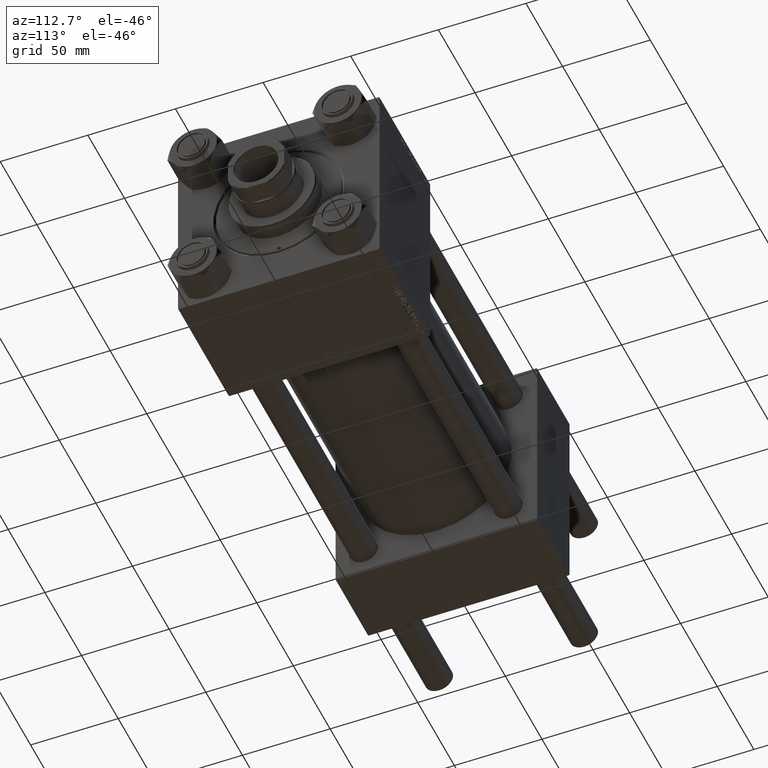
[diagram: clean part render]
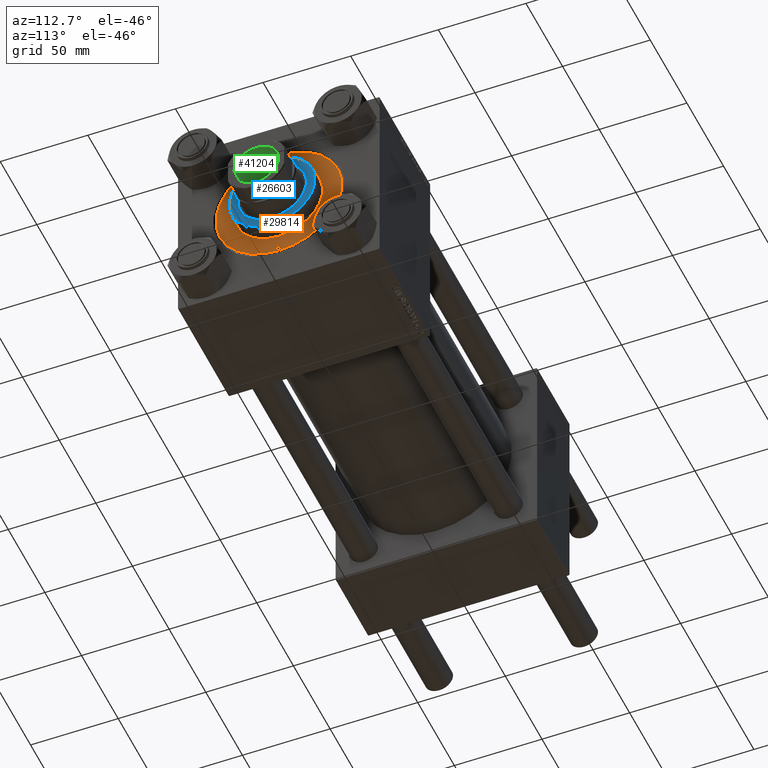
[diagram: same view with three faces highlighted in distinct colors, each labeled with its STEP entity id]
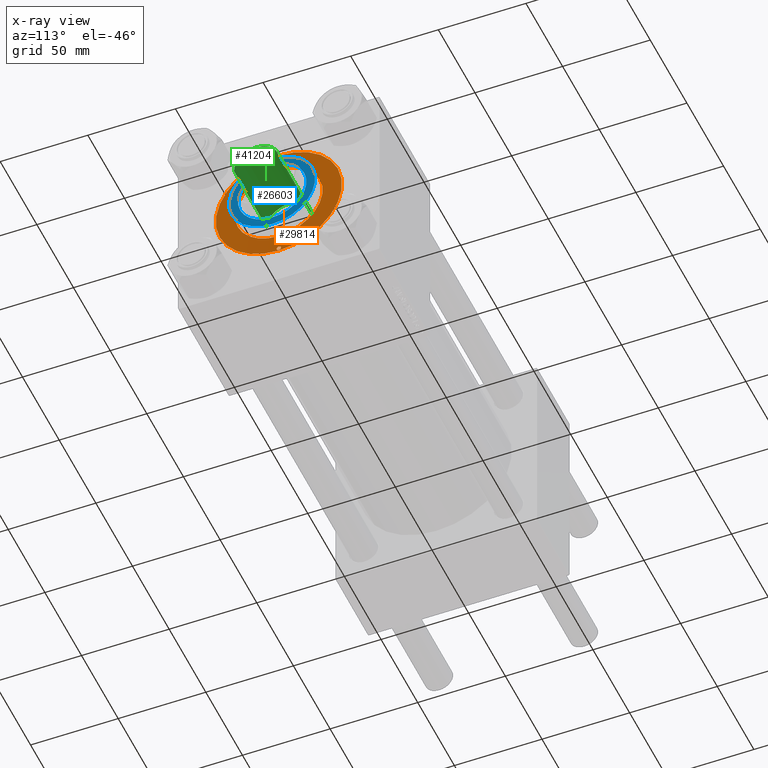
[diagram: x-ray of the same camera — body ghosted, the three highlighted faces saturated]
A machine part, auxiliary view with three faces highlighted in distinct colors.
The next image is the same camera in x-ray (body ghosted, the three faces saturated) — at least one of them is partly hidden behind the body in this view.
Their STEP definitions:

[orange] entity #29814 — the highlighted planar face has unit normal (1, 0, -0).
#382 = CIRCLE ( 'NONE', #17466, 1.250000000000001110 ) ;
#981 = AXIS2_PLACEMENT_3D ( 'NONE', #20736, #44654, #29391 ) ;
#1935 = ORIENTED_EDGE ( 'NONE', *, *, #22366, .T. ) ;
#2160 = DIRECTION ( 'NONE',  ( 0.000000000000000000, 0.000000000000000000, 1.000000000000000000 ) ) ;
#2227 = CIRCLE ( 'NONE', #42900, 25.00000000000000000 ) ;
#2228 = DIRECTION ( 'NONE',  ( 1.000000000000000000, 0.000000000000000000, 0.000000000000000000 ) ) ;
#2986 = EDGE_CURVE ( 'NONE', #9728, #20578, #2227, .T. ) ;
#4103 = EDGE_LOOP ( 'NONE', ( #32175, #26709 ) ) ;
#4294 = CARTESIAN_POINT ( 'NONE',  ( -25.00000000000000000, 0.000000000000000000, 28.69999999999999929 ) ) ;
#6079 = EDGE_CURVE ( 'NONE', #9065, #14049, #23490, .T. ) ;
#7168 = ORIENTED_EDGE ( 'NONE', *, *, #14631, .F. ) ;
#7275 = ORIENTED_EDGE ( 'NONE', *, *, #46369, .T. ) ;
#8010 = AXIS2_PLACEMENT_3D ( 'NONE', #28464, #39685, #20329 ) ;
#9046 = DIRECTION ( 'NONE',  ( 1.000000000000000000, 0.000000000000000000, 0.000000000000000000 ) ) ;
#9065 = VERTEX_POINT ( 'NONE', #14361 ) ;
#9728 = VERTEX_POINT ( 'NONE', #4294 ) ;
#10563 = DIRECTION ( 'NONE',  ( 1.000000000000000000, 0.000000000000000000, -0.000000000000000000 ) ) ;
#14049 = VERTEX_POINT ( 'NONE', #44635 ) ;
#14361 = CARTESIAN_POINT ( 'NONE',  ( -35.50000000000000711, 1.530808498934184175E-16, 28.69999999999999929 ) ) ;
#14631 = EDGE_CURVE ( 'NONE', #20578, #9728, #16286, .T. ) ;
#14644 = FACE_OUTER_BOUND ( 'NONE', #19462, .T. ) ;
#14736 = DIRECTION ( 'NONE',  ( 1.000000000000000000, 0.000000000000000000, 0.000000000000000000 ) ) ;
#15140 = FACE_BOUND ( 'NONE', #4103, .T. ) ;
#15212 = CIRCLE ( 'NONE', #42038, 1.250000000000001110 ) ;
#16286 = CIRCLE ( 'NONE', #24417, 25.00000000000000000 ) ;
#17224 = AXIS2_PLACEMENT_3D ( 'NONE', #22950, #19867, #46850 ) ;
#17466 = AXIS2_PLACEMENT_3D ( 'NONE', #50392, #25147, #2228 ) ;
#18489 = CARTESIAN_POINT ( 'NONE',  ( 36.00000000000000000, 4.408728476930470856E-15, 28.69999999999999929 ) ) ;
#19462 = EDGE_LOOP ( 'NONE', ( #1935, #7275 ) ) ;
#19867 = DIRECTION ( 'NONE',  ( 0.000000000000000000, 0.000000000000000000, 1.000000000000000000 ) ) ;
#19892 = CARTESIAN_POINT ( 'NONE',  ( 33.00000000000000000, 1.530808498934184175E-16, 28.69999999999999929 ) ) ;
#20299 = DIRECTION ( 'NONE',  ( 1.000000000000000000, 0.000000000000000000, 0.000000000000000000 ) ) ;
#20329 = DIRECTION ( 'NONE',  ( 1.000000000000000000, 0.000000000000000000, 0.000000000000000000 ) ) ;
#20578 = VERTEX_POINT ( 'NONE', #41644 ) ;
#20736 = CARTESIAN_POINT ( 'NONE',  ( 34.25000000000000000, 0.000000000000000000, 28.69999999999999929 ) ) ;
#20761 = CARTESIAN_POINT ( 'NONE',  ( -34.25000000000000000, 0.000000000000000000, 28.69999999999999929 ) ) ;
#21791 = EDGE_CURVE ( 'NONE', #42859, #47492, #26167, .T. ) ;
#22116 = CARTESIAN_POINT ( 'NONE',  ( 0.000000000000000000, 0.000000000000000000, 28.69999999999999929 ) ) ;
#22366 = EDGE_CURVE ( 'NONE', #46228, #49810, #41643, .T. ) ;
#22950 = CARTESIAN_POINT ( 'NONE',  ( 0.000000000000000000, 0.000000000000000000, 28.69999999999999929 ) ) ;
#23490 = CIRCLE ( 'NONE', #49509, 1.250000000000001110 ) ;
#24417 = AXIS2_PLACEMENT_3D ( 'NONE', #43212, #35847, #20299 ) ;
#25147 = DIRECTION ( 'NONE',  ( 0.000000000000000000, 0.000000000000000000, 1.000000000000000000 ) ) ;
#26167 = CIRCLE ( 'NONE', #981, 1.250000000000001110 ) ;
#26709 = ORIENTED_EDGE ( 'NONE', *, *, #28612, .F. ) ;
#27713 = DIRECTION ( 'NONE',  ( 0.000000000000000000, 0.000000000000000000, 1.000000000000000000 ) ) ;
#28464 = CARTESIAN_POINT ( 'NONE',  ( 0.000000000000000000, 0.000000000000000000, 28.69999999999999929 ) ) ;
#28612 = EDGE_CURVE ( 'NONE', #47492, #42859, #382, .T. ) ;
#29391 = DIRECTION ( 'NONE',  ( 1.000000000000000000, 0.000000000000000000, 0.000000000000000000 ) ) ;
#29814 = ADVANCED_FACE ( 'NONE', ( #34517, #15140, #49516, #14644 ), #30690, .T. ) ;
#30690 = PLANE ( 'NONE',  #47559 ) ;
#32175 = ORIENTED_EDGE ( 'NONE', *, *, #21791, .F. ) ;
#33508 = DIRECTION ( 'NONE',  ( 0.000000000000000000, 0.000000000000000000, 1.000000000000000000 ) ) ;
#34517 = FACE_BOUND ( 'NONE', #41798, .T. ) ;
#34629 = CARTESIAN_POINT ( 'NONE',  ( -36.00000000000000000, 0.000000000000000000, 28.69999999999999929 ) ) ;
#34745 = ORIENTED_EDGE ( 'NONE', *, *, #6079, .F. ) ;
#35129 = CARTESIAN_POINT ( 'NONE',  ( -34.25000000000000000, 0.000000000000000000, 28.69999999999999929 ) ) ;
#35847 = DIRECTION ( 'NONE',  ( 0.000000000000000000, 0.000000000000000000, 1.000000000000000000 ) ) ;
#38784 = CARTESIAN_POINT ( 'NONE',  ( 35.50000000000000711, 0.000000000000000000, 28.69999999999999929 ) ) ;
#39685 = DIRECTION ( 'NONE',  ( 0.000000000000000000, 0.000000000000000000, 1.000000000000000000 ) ) ;
#40721 = DIRECTION ( 'NONE',  ( 0.000000000000000000, 0.000000000000000000, 1.000000000000000000 ) ) ;
#41376 = CIRCLE ( 'NONE', #8010, 36.00000000000000000 ) ;
#41626 = EDGE_CURVE ( 'NONE', #14049, #9065, #15212, .T. ) ;
#41643 = CIRCLE ( 'NONE', #17224, 36.00000000000000000 ) ;
#41644 = CARTESIAN_POINT ( 'NONE',  ( 25.00000000000000000, 3.061616997868383043E-15, 28.69999999999999929 ) ) ;
#41717 = ORIENTED_EDGE ( 'NONE', *, *, #2986, .F. ) ;
#41798 = EDGE_LOOP ( 'NONE', ( #48480, #34745 ) ) ;
#42038 = AXIS2_PLACEMENT_3D ( 'NONE', #35129, #27713, #47305 ) ;
#42859 = VERTEX_POINT ( 'NONE', #38784 ) ;
#42900 = AXIS2_PLACEMENT_3D ( 'NONE', #22116, #40721, #14736 ) ;
#43212 = CARTESIAN_POINT ( 'NONE',  ( 0.000000000000000000, 0.000000000000000000, 28.69999999999999929 ) ) ;
#44635 = CARTESIAN_POINT ( 'NONE',  ( -33.00000000000000000, 0.000000000000000000, 28.69999999999999929 ) ) ;
#44654 = DIRECTION ( 'NONE',  ( 0.000000000000000000, 0.000000000000000000, 1.000000000000000000 ) ) ;
#46197 = CARTESIAN_POINT ( 'NONE',  ( 0.000000000000000000, 0.000000000000000000, 28.69999999999999929 ) ) ;
#46228 = VERTEX_POINT ( 'NONE', #34629 ) ;
#46369 = EDGE_CURVE ( 'NONE', #49810, #46228, #41376, .T. ) ;
#46850 = DIRECTION ( 'NONE',  ( 1.000000000000000000, 0.000000000000000000, 0.000000000000000000 ) ) ;
#47305 = DIRECTION ( 'NONE',  ( 1.000000000000000000, 0.000000000000000000, 0.000000000000000000 ) ) ;
#47492 = VERTEX_POINT ( 'NONE', #19892 ) ;
#47559 = AXIS2_PLACEMENT_3D ( 'NONE', #46197, #33508, #10563 ) ;
#48480 = ORIENTED_EDGE ( 'NONE', *, *, #41626, .F. ) ;
#49509 = AXIS2_PLACEMENT_3D ( 'NONE', #20761, #2160, #9046 ) ;
#49516 = FACE_BOUND ( 'NONE', #49938, .T. ) ;
#49810 = VERTEX_POINT ( 'NONE', #18489 ) ;
#49938 = EDGE_LOOP ( 'NONE', ( #41717, #7168 ) ) ;
#50392 = CARTESIAN_POINT ( 'NONE',  ( 34.25000000000000000, 0.000000000000000000, 28.69999999999999929 ) ) ;

[blue] entity #26603 — the highlighted planar face has unit normal (1, 0, -0).
#1868 = DIRECTION ( 'NONE',  ( 0.000000000000000000, 0.000000000000000000, 1.000000000000000000 ) ) ;
#2363 = CARTESIAN_POINT ( 'NONE',  ( -24.49999999999999645, 0.000000000000000000, 37.69999999999999574 ) ) ;
#2571 = AXIS2_PLACEMENT_3D ( 'NONE', #33700, #1868, #37008 ) ;
#4141 = CARTESIAN_POINT ( 'NONE',  ( 0.000000000000000000, 0.000000000000000000, 37.69999999999999574 ) ) ;
#4325 = ORIENTED_EDGE ( 'NONE', *, *, #42934, .F. ) ;
#4666 = FACE_BOUND ( 'NONE', #20717, .T. ) ;
#9600 = ORIENTED_EDGE ( 'NONE', *, *, #21555, .T. ) ;
#9878 = CIRCLE ( 'NONE', #2571, 19.50000000000000000 ) ;
#11335 = AXIS2_PLACEMENT_3D ( 'NONE', #30644, #46154, #33964 ) ;
#11494 = EDGE_CURVE ( 'NONE', #29146, #16881, #21915, .T. ) ;
#12054 = FACE_OUTER_BOUND ( 'NONE', #45596, .T. ) ;
#12812 = AXIS2_PLACEMENT_3D ( 'NONE', #4141, #46897, #15606 ) ;
#15606 = DIRECTION ( 'NONE',  ( 1.000000000000000000, 0.000000000000000000, 0.000000000000000000 ) ) ;
#15635 = CIRCLE ( 'NONE', #22939, 24.49999999999999645 ) ;
#16881 = VERTEX_POINT ( 'NONE', #2363 ) ;
#16951 = EDGE_CURVE ( 'NONE', #33333, #42990, #9878, .T. ) ;
#18193 = AXIS2_PLACEMENT_3D ( 'NONE', #35749, #27334, #43123 ) ;
#20717 = EDGE_LOOP ( 'NONE', ( #28014, #4325 ) ) ;
#20965 = CARTESIAN_POINT ( 'NONE',  ( 24.49999999999999645, 3.031000827889698861E-15, 37.69999999999999574 ) ) ;
#21555 = EDGE_CURVE ( 'NONE', #16881, #29146, #15635, .T. ) ;
#21915 = CIRCLE ( 'NONE', #11335, 24.49999999999999645 ) ;
#22939 = AXIS2_PLACEMENT_3D ( 'NONE', #26122, #30208, #26888 ) ;
#26122 = CARTESIAN_POINT ( 'NONE',  ( 0.000000000000000000, 0.000000000000000000, 37.69999999999999574 ) ) ;
#26603 = ADVANCED_FACE ( 'NONE', ( #4666, #12054 ), #40059, .T. ) ;
#26888 = DIRECTION ( 'NONE',  ( 1.000000000000000000, 0.000000000000000000, 0.000000000000000000 ) ) ;
#27334 = DIRECTION ( 'NONE',  ( 0.000000000000000000, 0.000000000000000000, 1.000000000000000000 ) ) ;
#28014 = ORIENTED_EDGE ( 'NONE', *, *, #16951, .F. ) ;
#29146 = VERTEX_POINT ( 'NONE', #20965 ) ;
#30208 = DIRECTION ( 'NONE',  ( 0.000000000000000000, 0.000000000000000000, 1.000000000000000000 ) ) ;
#30644 = CARTESIAN_POINT ( 'NONE',  ( 0.000000000000000000, 0.000000000000000000, 37.69999999999999574 ) ) ;
#33333 = VERTEX_POINT ( 'NONE', #33734 ) ;
#33700 = CARTESIAN_POINT ( 'NONE',  ( 0.000000000000000000, 0.000000000000000000, 37.69999999999999574 ) ) ;
#33734 = CARTESIAN_POINT ( 'NONE',  ( 19.50000000000000000, 0.000000000000000000, 37.69999999999999574 ) ) ;
#33964 = DIRECTION ( 'NONE',  ( 1.000000000000000000, 0.000000000000000000, 0.000000000000000000 ) ) ;
#35749 = CARTESIAN_POINT ( 'NONE',  ( 0.000000000000000000, 0.000000000000000000, 37.69999999999999574 ) ) ;
#37008 = DIRECTION ( 'NONE',  ( 1.000000000000000000, 0.000000000000000000, 0.000000000000000000 ) ) ;
#40059 = PLANE ( 'NONE',  #18193 ) ;
#40800 = ORIENTED_EDGE ( 'NONE', *, *, #11494, .T. ) ;
#41240 = CIRCLE ( 'NONE', #12812, 19.50000000000000000 ) ;
#42934 = EDGE_CURVE ( 'NONE', #42990, #33333, #41240, .T. ) ;
#42990 = VERTEX_POINT ( 'NONE', #48396 ) ;
#43123 = DIRECTION ( 'NONE',  ( 1.000000000000000000, 0.000000000000000000, -0.000000000000000000 ) ) ;
#45596 = EDGE_LOOP ( 'NONE', ( #9600, #40800 ) ) ;
#46154 = DIRECTION ( 'NONE',  ( 0.000000000000000000, 0.000000000000000000, 1.000000000000000000 ) ) ;
#46897 = DIRECTION ( 'NONE',  ( 0.000000000000000000, 0.000000000000000000, 1.000000000000000000 ) ) ;
#48396 = CARTESIAN_POINT ( 'NONE',  ( -19.50000000000000000, 2.388061258337338939E-15, 37.69999999999999574 ) ) ;

[green] entity #41204 — the highlighted cylindrical surface (edge-blend (fillet) strip) has radius 12.75 mm, axis along (1, 0, -0).
#1747 = AXIS2_PLACEMENT_3D ( 'NONE', #8269, #23811, #19223 ) ;
#4196 = EDGE_CURVE ( 'NONE', #6971, #44703, #31229, .T. ) ;
#5549 = DIRECTION ( 'NONE',  ( -0.000000000000000000, -0.000000000000000000, 1.000000000000000000 ) ) ;
#6683 = CARTESIAN_POINT ( 'NONE',  ( 0.000000000000000000, 0.000000000000000000, 246.0000000000000000 ) ) ;
#6971 = VERTEX_POINT ( 'NONE', #10310 ) ;
#8269 = CARTESIAN_POINT ( 'NONE',  ( 0.000000000000000000, 0.000000000000000000, 245.6999999999999886 ) ) ;
#10310 = CARTESIAN_POINT ( 'NONE',  ( -12.74999999999998934, 1.561424668912873928E-15, 201.0000000000000000 ) ) ;
#11513 = CIRCLE ( 'NONE', #1747, 12.74999999999999112 ) ;
#13704 = VECTOR ( 'NONE', #46233, 1000.000000000000000 ) ;
#15309 = EDGE_LOOP ( 'NONE', ( #37951, #37571, #44217, #28233 ) ) ;
#19223 = DIRECTION ( 'NONE',  ( 1.000000000000000000, 0.000000000000000000, 0.000000000000000000 ) ) ;
#20050 = AXIS2_PLACEMENT_3D ( 'NONE', #6683, #26030, #49955 ) ;
#20747 = VERTEX_POINT ( 'NONE', #35780 ) ;
#20788 = EDGE_CURVE ( 'NONE', #44703, #20747, #11513, .T. ) ;
#21352 = CARTESIAN_POINT ( 'NONE',  ( 0.000000000000000000, 0.000000000000000000, 201.0000000000000000 ) ) ;
#23288 = CIRCLE ( 'NONE', #37949, 12.74999999999998934 ) ;
#23811 = DIRECTION ( 'NONE',  ( 0.000000000000000000, 0.000000000000000000, 1.000000000000000000 ) ) ;
#24412 = DIRECTION ( 'NONE',  ( -0.000000000000000000, -0.000000000000000000, 1.000000000000000000 ) ) ;
#26030 = DIRECTION ( 'NONE',  ( -0.000000000000000000, -0.000000000000000000, 1.000000000000000000 ) ) ;
#28233 = ORIENTED_EDGE ( 'NONE', *, *, #33033, .F. ) ;
#29604 = CYLINDRICAL_SURFACE ( 'NONE', #20050, 12.74999999999999112 ) ;
#30468 = CARTESIAN_POINT ( 'NONE',  ( -12.74999999999999112, 1.561424668912874125E-15, 246.0000000000000000 ) ) ;
#31229 = LINE ( 'NONE', #30468, #13704 ) ;
#32467 = CARTESIAN_POINT ( 'NONE',  ( -12.74999999999999112, 1.561424668912874125E-15, 245.6999999999999886 ) ) ;
#33033 = EDGE_CURVE ( 'NONE', #43753, #20747, #44250, .T. ) ;
#33350 = EDGE_CURVE ( 'NONE', #6971, #43753, #23288, .T. ) ;
#35780 = CARTESIAN_POINT ( 'NONE',  ( 12.74999999999999112, 0.000000000000000000, 245.6999999999999886 ) ) ;
#37571 = ORIENTED_EDGE ( 'NONE', *, *, #4196, .T. ) ;
#37949 = AXIS2_PLACEMENT_3D ( 'NONE', #21352, #24412, #47827 ) ;
#37951 = ORIENTED_EDGE ( 'NONE', *, *, #33350, .F. ) ;
#38794 = CARTESIAN_POINT ( 'NONE',  ( 12.74999999999998934, 0.000000000000000000, 201.0000000000000000 ) ) ;
#40256 = VECTOR ( 'NONE', #5549, 1000.000000000000000 ) ;
#40446 = CARTESIAN_POINT ( 'NONE',  ( 12.74999999999999112, 0.000000000000000000, 246.0000000000000000 ) ) ;
#41204 = ADVANCED_FACE ( 'NONE', ( #48944 ), #29604, .F. ) ;
#43753 = VERTEX_POINT ( 'NONE', #38794 ) ;
#44217 = ORIENTED_EDGE ( 'NONE', *, *, #20788, .T. ) ;
#44250 = LINE ( 'NONE', #40446, #40256 ) ;
#44703 = VERTEX_POINT ( 'NONE', #32467 ) ;
#46233 = DIRECTION ( 'NONE',  ( -0.000000000000000000, -0.000000000000000000, 1.000000000000000000 ) ) ;
#47827 = DIRECTION ( 'NONE',  ( 1.000000000000000000, 0.000000000000000000, 0.000000000000000000 ) ) ;
#48944 = FACE_OUTER_BOUND ( 'NONE', #15309, .T. ) ;
#49955 = DIRECTION ( 'NONE',  ( 1.000000000000000000, 0.000000000000000000, 0.000000000000000000 ) ) ;